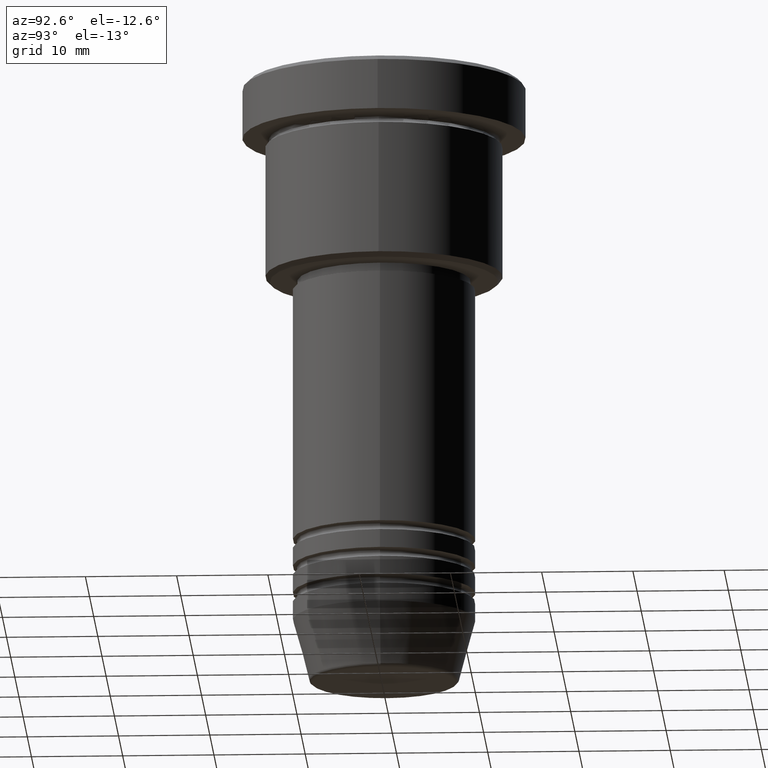
[diagram: clean part render]
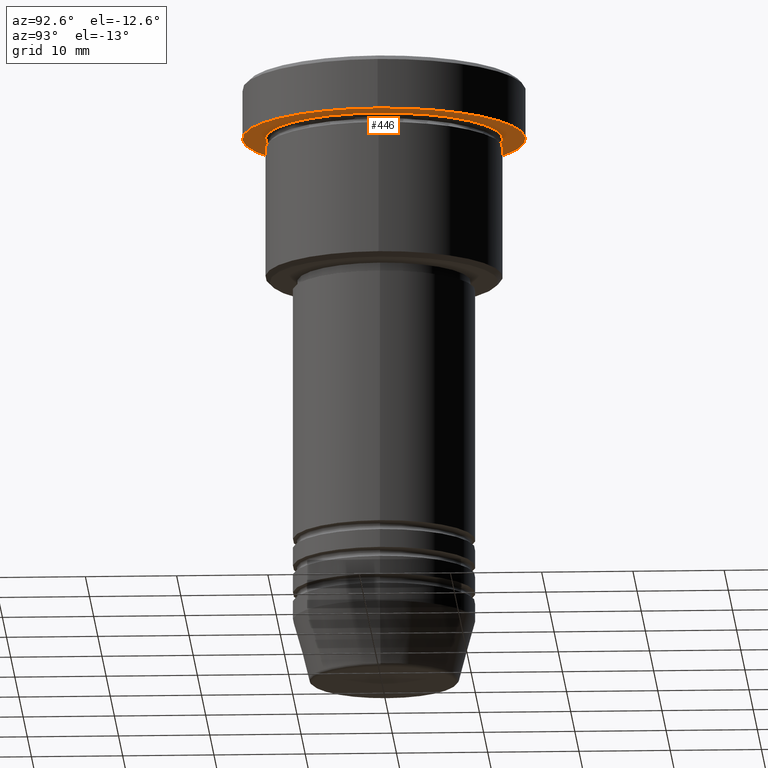
[diagram: same view with one face highlighted and labeled with its STEP entity id]
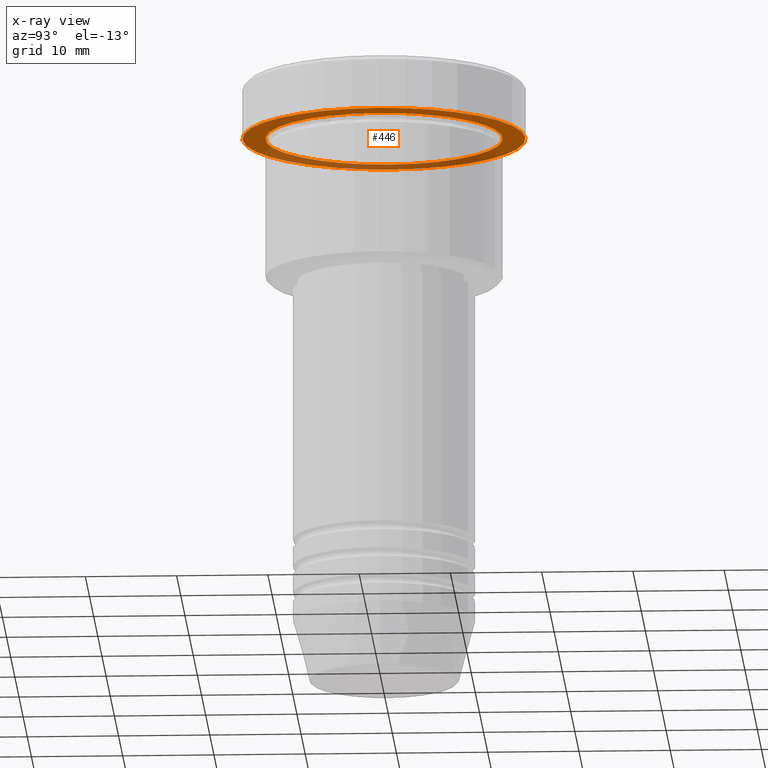
[diagram: x-ray of the same camera — body ghosted, the highlighted face saturated]
A machine part, auxiliary view. The second image highlights one B-rep face of the part: STEP entity #446.
The next image is the same camera in x-ray: the body ghosted, the highlighted face saturated — about 36% of this face is hidden behind the body in this view.
In plain terms, the highlighted planar face has unit normal (0, 0, -1).
Its self-contained STEP definition (entity closure, byte-faithful):
#39 = CARTESIAN_POINT ( 'NONE',  ( -15.50000000000000000, 1.898202538678397557E-15, -5.999999999999995559 ) ) ;
#73 = AXIS2_PLACEMENT_3D ( 'NONE', #745, #770, #757 ) ;
#103 = VERTEX_POINT ( 'NONE', #39 ) ;
#141 = ORIENTED_EDGE ( 'NONE', *, *, #760, .F. ) ;
#162 = CARTESIAN_POINT ( 'NONE',  ( 0.000000000000000000, 0.000000000000000000, -5.999999999999995559 ) ) ;
#194 = CARTESIAN_POINT ( 'NONE',  ( -13.00000000000000000, 0.000000000000000000, -5.999999999999994671 ) ) ;
#220 = CARTESIAN_POINT ( 'NONE',  ( 0.000000000000000000, 0.000000000000000000, -5.999999999999995559 ) ) ;
#239 = EDGE_LOOP ( 'NONE', ( #932, #141 ) ) ;
#241 = VERTEX_POINT ( 'NONE', #692 ) ;
#316 = CARTESIAN_POINT ( 'NONE',  ( 0.000000000000000000, 0.000000000000000000, -5.999999999999995559 ) ) ;
#322 = VERTEX_POINT ( 'NONE', #646 ) ;
#335 = ORIENTED_EDGE ( 'NONE', *, *, #729, .T. ) ;
#348 = VERTEX_POINT ( 'NONE', #194 ) ;
#367 = EDGE_CURVE ( 'NONE', #322, #103, #968, .T. ) ;
#446 = ADVANCED_FACE ( 'NONE', ( #483, #491 ), #935, .T. ) ;
#474 = CIRCLE ( 'NONE', #1099, 13.00000000000000000 ) ;
#483 = FACE_BOUND ( 'NONE', #558, .T. ) ;
#491 = FACE_OUTER_BOUND ( 'NONE', #239, .T. ) ;
#495 = DIRECTION ( 'NONE',  ( -1.000000000000000000, 0.000000000000000000, 0.000000000000000000 ) ) ;
#558 = EDGE_LOOP ( 'NONE', ( #1150, #335 ) ) ;
#569 = DIRECTION ( 'NONE',  ( 1.000000000000000000, 0.000000000000000000, 0.000000000000000000 ) ) ;
#578 = DIRECTION ( 'NONE',  ( -0.000000000000000000, -0.000000000000000000, 1.000000000000000000 ) ) ;
#583 = AXIS2_PLACEMENT_3D ( 'NONE', #316, #855, #569 ) ;
#598 = EDGE_CURVE ( 'NONE', #348, #241, #1123, .T. ) ;
#617 = AXIS2_PLACEMENT_3D ( 'NONE', #162, #884, #875 ) ;
#646 = CARTESIAN_POINT ( 'NONE',  ( 15.50000000000000000, 0.000000000000000000, -5.999999999999995559 ) ) ;
#692 = CARTESIAN_POINT ( 'NONE',  ( 13.00000000000000000, 1.592040838891559095E-15, -5.999999999999994671 ) ) ;
#716 = CIRCLE ( 'NONE', #617, 15.50000000000000000 ) ;
#725 = DIRECTION ( 'NONE',  ( -0.000000000000000000, -0.000000000000000000, 1.000000000000000000 ) ) ;
#729 = EDGE_CURVE ( 'NONE', #241, #348, #474, .T. ) ;
#731 = CARTESIAN_POINT ( 'NONE',  ( 0.000000000000000000, 0.000000000000000000, -5.999999999999995559 ) ) ;
#736 = DIRECTION ( 'NONE',  ( -1.000000000000000000, 0.000000000000000000, 0.000000000000000000 ) ) ;
#745 = CARTESIAN_POINT ( 'NONE',  ( 0.000000000000000000, 15.50000000000000000, -5.999999999999995559 ) ) ;
#753 = AXIS2_PLACEMENT_3D ( 'NONE', #731, #725, #736 ) ;
#757 = DIRECTION ( 'NONE',  ( -1.000000000000000000, 0.000000000000000000, -0.000000000000000000 ) ) ;
#760 = EDGE_CURVE ( 'NONE', #103, #322, #716, .T. ) ;
#770 = DIRECTION ( 'NONE',  ( 0.000000000000000000, 0.000000000000000000, -1.000000000000000000 ) ) ;
#855 = DIRECTION ( 'NONE',  ( -0.000000000000000000, -0.000000000000000000, 1.000000000000000000 ) ) ;
#875 = DIRECTION ( 'NONE',  ( 1.000000000000000000, 0.000000000000000000, 0.000000000000000000 ) ) ;
#884 = DIRECTION ( 'NONE',  ( -0.000000000000000000, -0.000000000000000000, 1.000000000000000000 ) ) ;
#932 = ORIENTED_EDGE ( 'NONE', *, *, #367, .F. ) ;
#935 = PLANE ( 'NONE',  #73 ) ;
#968 = CIRCLE ( 'NONE', #583, 15.50000000000000000 ) ;
#1099 = AXIS2_PLACEMENT_3D ( 'NONE', #220, #578, #495 ) ;
#1123 = CIRCLE ( 'NONE', #753, 13.00000000000000000 ) ;
#1150 = ORIENTED_EDGE ( 'NONE', *, *, #598, .T. ) ;